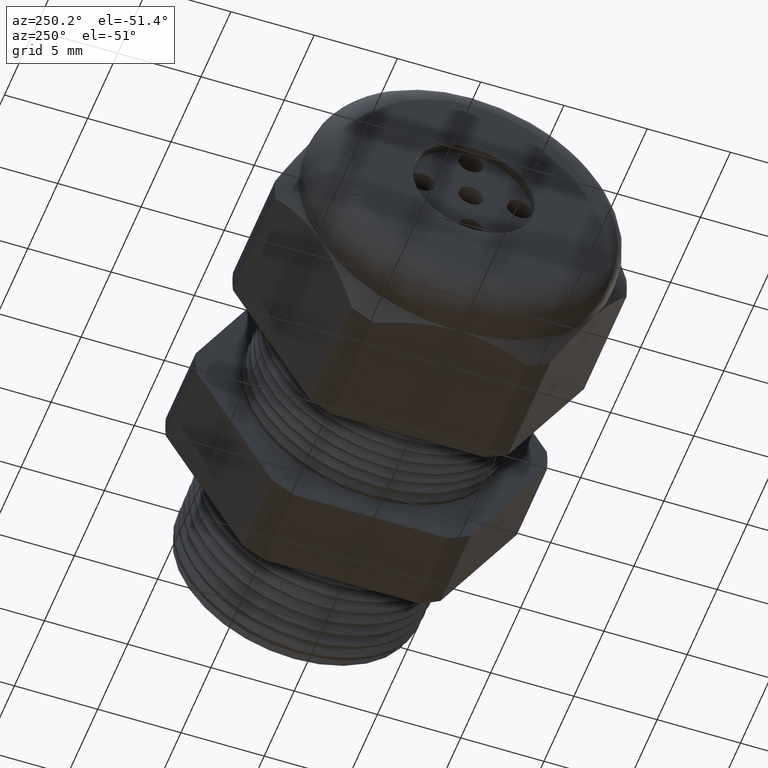
[diagram: clean part render]
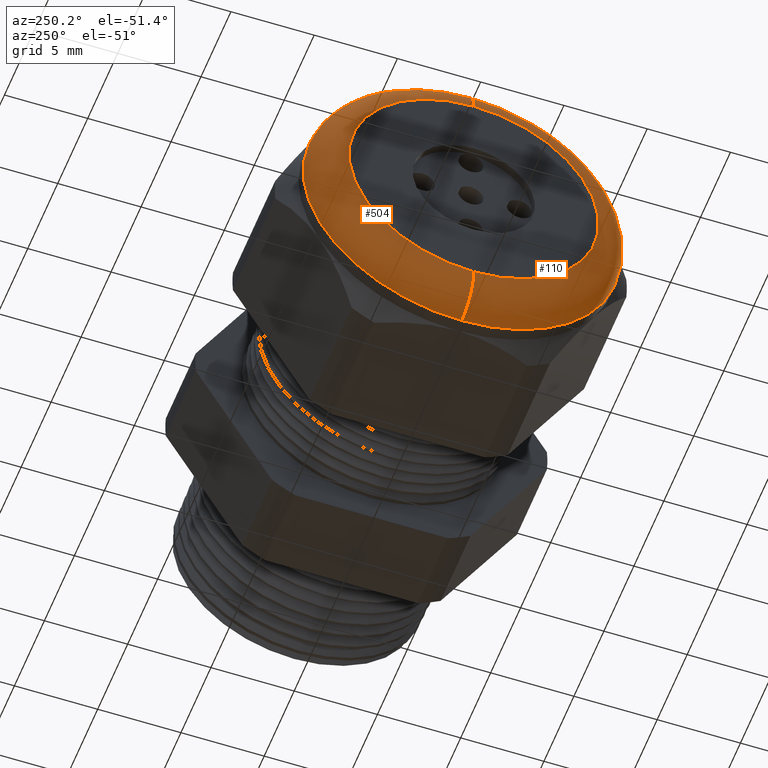
[diagram: same view with one multi-face feature highlighted, each face labeled with its STEP entity id]
A machine part, auxiliary view. The highlighted faces form ONE feature: a constant-radius fillet chain: 2 tangent blend faces with common blend radius 2.032 mm. The faces share edges in the B-rep.
Their STEP definitions:
[1] entity #504 (Torus):
#426 = VERTEX_POINT ( 'NONE', #2128 ) ;
#427 = VERTEX_POINT ( 'NONE', #2127 ) ;
#428 = ORIENTED_EDGE ( 'NONE', *, *, #429, .T. ) ;
#429 = EDGE_CURVE ( 'NONE', #426, #430, #2126, .T. ) ;
#430 = VERTEX_POINT ( 'NONE', #2121 ) ;
#485 = ORIENTED_EDGE ( 'NONE', *, *, #486, .F. ) ;
#486 = EDGE_CURVE ( 'NONE', #487, #430, #2200, .T. ) ;
#487 = VERTEX_POINT ( 'NONE', #2259 ) ;
#488 = ORIENTED_EDGE ( 'NONE', *, *, #489, .F. ) ;
#489 = EDGE_CURVE ( 'NONE', #427, #487, #2258, .T. ) ;
#504 = ADVANCED_FACE ( 'NONE', ( #2293 ), #2291, .T. ) ;
#505 = EDGE_LOOP ( 'NONE', ( #506, #428, #485, #488 ) ) ;
#506 = ORIENTED_EDGE ( 'NONE', *, *, #507, .F. ) ;
#507 = EDGE_CURVE ( 'NONE', #426, #427, #2287, .T. ) ;
#2121 = CARTESIAN_POINT ( 'NONE',  ( -1.179999999999999900, 4.102566777143634000E-017, -0.2950000000000001000 ) ) ;
#2122 = DIRECTION ( 'NONE',  ( 0.0000000000000000000, -1.224646799147353500E-016, 1.000000000000000000 ) ) ;
#2123 = DIRECTION ( 'NONE',  ( 0.0000000000000000000, 1.000000000000000000, 1.224646799147353200E-016 ) ) ;
#2124 = CARTESIAN_POINT ( 'NONE',  ( -1.100000000000000100, 3.612708057484693200E-017, -0.2950000000000001000 ) ) ;
#2125 = AXIS2_PLACEMENT_3D ( 'NONE', #2124, #2123, #2122 ) ;
#2126 = CIRCLE ( 'NONE', #2125, 0.08000000000000000200 ) ;
#2127 = CARTESIAN_POINT ( 'NONE',  ( -1.100000000000000100, 4.592425496802576100E-017, 0.3750000000000001100 ) ) ;
#2128 = CARTESIAN_POINT ( 'NONE',  ( -1.100000000000000100, 0.0000000000000000000, -0.3750000000000001100 ) ) ;
#2200 = CIRCLE ( 'NONE', #2263, 0.2950000000000001000 ) ;
#2254 = DIRECTION ( 'NONE',  ( 0.0000000000000000000, 0.0000000000000000000, -1.000000000000000000 ) ) ;
#2255 = DIRECTION ( 'NONE',  ( 0.0000000000000000000, -1.000000000000000000, 0.0000000000000000000 ) ) ;
#2256 = CARTESIAN_POINT ( 'NONE',  ( -1.100000000000000100, 0.0000000000000000000, 0.2950000000000001000 ) ) ;
#2257 = AXIS2_PLACEMENT_3D ( 'NONE', #2256, #2255, #2254 ) ;
#2258 = CIRCLE ( 'NONE', #2257, 0.08000000000000000200 ) ;
#2259 = CARTESIAN_POINT ( 'NONE',  ( -1.179999999999999900, 0.0000000000000000000, 0.2950000000000001000 ) ) ;
#2260 = DIRECTION ( 'NONE',  ( 0.0000000000000000000, 0.0000000000000000000, 1.000000000000000000 ) ) ;
#2261 = DIRECTION ( 'NONE',  ( -1.000000000000000000, 0.0000000000000000000, 0.0000000000000000000 ) ) ;
#2262 = CARTESIAN_POINT ( 'NONE',  ( -1.179999999999999900, 0.0000000000000000000, 0.0000000000000000000 ) ) ;
#2263 = AXIS2_PLACEMENT_3D ( 'NONE', #2262, #2261, #2260 ) ;
#2283 = DIRECTION ( 'NONE',  ( 0.0000000000000000000, 0.0000000000000000000, 1.000000000000000000 ) ) ;
#2284 = DIRECTION ( 'NONE',  ( 1.000000000000000000, 0.0000000000000000000, 0.0000000000000000000 ) ) ;
#2285 = CARTESIAN_POINT ( 'NONE',  ( -1.100000000000000100, 0.0000000000000000000, 0.0000000000000000000 ) ) ;
#2286 = AXIS2_PLACEMENT_3D ( 'NONE', #2285, #2284, #2283 ) ;
#2287 = CIRCLE ( 'NONE', #2286, 0.3750000000000001100 ) ;
#2288 = DIRECTION ( 'NONE',  ( 0.0000000000000000000, 0.0000000000000000000, 1.000000000000000000 ) ) ;
#2289 = DIRECTION ( 'NONE',  ( -1.000000000000000000, 0.0000000000000000000, 0.0000000000000000000 ) ) ;
#2290 = AXIS2_PLACEMENT_3D ( 'NONE', #2292, #2289, #2288 ) ;
#2291 = TOROIDAL_SURFACE ( 'NONE', #2290, 0.2950000000000001000, 0.08000000000000000200 ) ;
#2292 = CARTESIAN_POINT ( 'NONE',  ( -1.100000000000000100, 0.0000000000000000000, 0.0000000000000000000 ) ) ;
#2293 = FACE_OUTER_BOUND ( 'NONE', #505, .T. ) ;
[2] entity #110 (Torus):
#110 = ADVANCED_FACE ( 'NONE', ( #1636 ), #1634, .T. ) ;
#111 = EDGE_LOOP ( 'NONE', ( #112, #113, #114, #115 ) ) ;
#112 = ORIENTED_EDGE ( 'NONE', *, *, #429, .F. ) ;
#113 = ORIENTED_EDGE ( 'NONE', *, *, #1010, .F. ) ;
#114 = ORIENTED_EDGE ( 'NONE', *, *, #489, .T. ) ;
#115 = ORIENTED_EDGE ( 'NONE', *, *, #998, .F. ) ;
#426 = VERTEX_POINT ( 'NONE', #2128 ) ;
#427 = VERTEX_POINT ( 'NONE', #2127 ) ;
#429 = EDGE_CURVE ( 'NONE', #426, #430, #2126, .T. ) ;
#430 = VERTEX_POINT ( 'NONE', #2121 ) ;
#487 = VERTEX_POINT ( 'NONE', #2259 ) ;
#489 = EDGE_CURVE ( 'NONE', #427, #487, #2258, .T. ) ;
#998 = EDGE_CURVE ( 'NONE', #430, #487, #3228, .T. ) ;
#1010 = EDGE_CURVE ( 'NONE', #427, #426, #3267, .T. ) ;
#1631 = DIRECTION ( 'NONE',  ( 0.0000000000000000000, 0.0000000000000000000, 1.000000000000000000 ) ) ;
#1632 = DIRECTION ( 'NONE',  ( -1.000000000000000000, 0.0000000000000000000, 0.0000000000000000000 ) ) ;
#1633 = AXIS2_PLACEMENT_3D ( 'NONE', #1635, #1632, #1631 ) ;
#1634 = TOROIDAL_SURFACE ( 'NONE', #1633, 0.2950000000000001000, 0.08000000000000000200 ) ;
#1635 = CARTESIAN_POINT ( 'NONE',  ( -1.100000000000000100, 0.0000000000000000000, 0.0000000000000000000 ) ) ;
#1636 = FACE_OUTER_BOUND ( 'NONE', #111, .T. ) ;
#2121 = CARTESIAN_POINT ( 'NONE',  ( -1.179999999999999900, 4.102566777143634000E-017, -0.2950000000000001000 ) ) ;
#2122 = DIRECTION ( 'NONE',  ( 0.0000000000000000000, -1.224646799147353500E-016, 1.000000000000000000 ) ) ;
#2123 = DIRECTION ( 'NONE',  ( 0.0000000000000000000, 1.000000000000000000, 1.224646799147353200E-016 ) ) ;
#2124 = CARTESIAN_POINT ( 'NONE',  ( -1.100000000000000100, 3.612708057484693200E-017, -0.2950000000000001000 ) ) ;
#2125 = AXIS2_PLACEMENT_3D ( 'NONE', #2124, #2123, #2122 ) ;
#2126 = CIRCLE ( 'NONE', #2125, 0.08000000000000000200 ) ;
#2127 = CARTESIAN_POINT ( 'NONE',  ( -1.100000000000000100, 4.592425496802576100E-017, 0.3750000000000001100 ) ) ;
#2128 = CARTESIAN_POINT ( 'NONE',  ( -1.100000000000000100, 0.0000000000000000000, -0.3750000000000001100 ) ) ;
#2254 = DIRECTION ( 'NONE',  ( 0.0000000000000000000, 0.0000000000000000000, -1.000000000000000000 ) ) ;
#2255 = DIRECTION ( 'NONE',  ( 0.0000000000000000000, -1.000000000000000000, 0.0000000000000000000 ) ) ;
#2256 = CARTESIAN_POINT ( 'NONE',  ( -1.100000000000000100, 0.0000000000000000000, 0.2950000000000001000 ) ) ;
#2257 = AXIS2_PLACEMENT_3D ( 'NONE', #2256, #2255, #2254 ) ;
#2258 = CIRCLE ( 'NONE', #2257, 0.08000000000000000200 ) ;
#2259 = CARTESIAN_POINT ( 'NONE',  ( -1.179999999999999900, 0.0000000000000000000, 0.2950000000000001000 ) ) ;
#3224 = DIRECTION ( 'NONE',  ( 0.0000000000000000000, 0.0000000000000000000, 1.000000000000000000 ) ) ;
#3225 = DIRECTION ( 'NONE',  ( -1.000000000000000000, 0.0000000000000000000, 0.0000000000000000000 ) ) ;
#3226 = CARTESIAN_POINT ( 'NONE',  ( -1.179999999999999900, 0.0000000000000000000, 0.0000000000000000000 ) ) ;
#3227 = AXIS2_PLACEMENT_3D ( 'NONE', #3226, #3225, #3224 ) ;
#3228 = CIRCLE ( 'NONE', #3227, 0.2950000000000001000 ) ;
#3263 = DIRECTION ( 'NONE',  ( 0.0000000000000000000, 0.0000000000000000000, 1.000000000000000000 ) ) ;
#3264 = DIRECTION ( 'NONE',  ( 1.000000000000000000, 0.0000000000000000000, 0.0000000000000000000 ) ) ;
#3265 = CARTESIAN_POINT ( 'NONE',  ( -1.100000000000000100, 0.0000000000000000000, 0.0000000000000000000 ) ) ;
#3266 = AXIS2_PLACEMENT_3D ( 'NONE', #3265, #3264, #3263 ) ;
#3267 = CIRCLE ( 'NONE', #3266, 0.3750000000000001100 ) ;